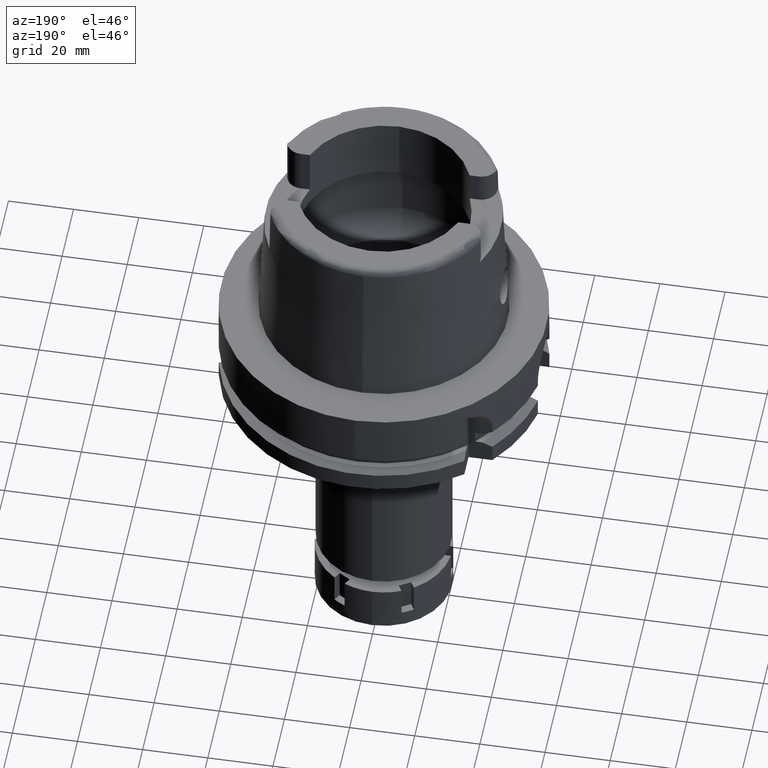
[diagram: clean part render]
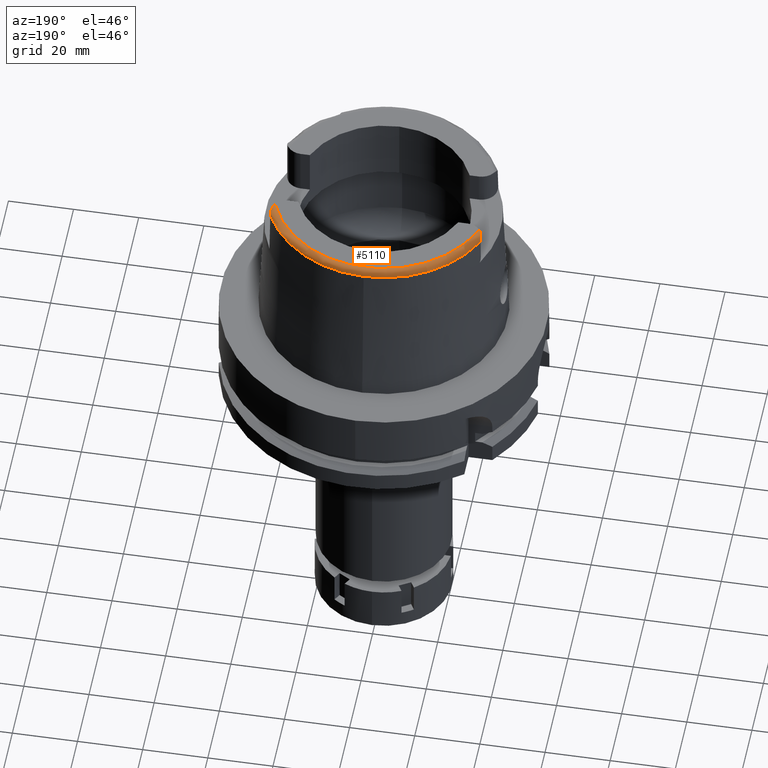
[diagram: same view with one face highlighted and labeled with its STEP entity id]
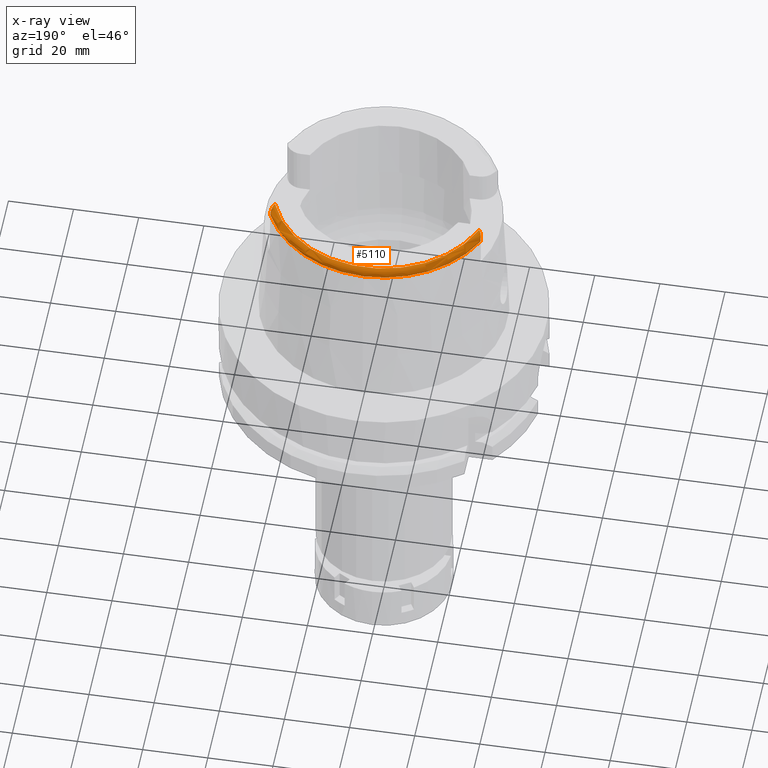
[diagram: x-ray of the same camera — body ghosted, the highlighted face saturated]
A machine part, auxiliary view. The second image highlights one B-rep face of the part: STEP entity #5110.
The next image is the same camera in x-ray: the body ghosted, the highlighted face saturated — about 0% of this face is hidden behind the body in this view.
In plain terms, the highlighted toroidal blend (fillet) surface has major radius 33.5974 mm and minor (blend) radius 2 mm.
Its self-contained STEP definition (entity closure, byte-faithful):
#4 = AXIS2_PLACEMENT_3D ( 'NONE', #3553, #669, #271 ) ;
#92 = VERTEX_POINT ( 'NONE', #5031 ) ;
#182 = CARTESIAN_POINT ( 'NONE',  ( -31.96487981873288220, 13.24625706049956086, 49.73013168355097235 ) ) ;
#271 = DIRECTION ( 'NONE',  ( 0.0000000000000000000, 1.000000000000000000, 0.0000000000000000000 ) ) ;
#356 = CARTESIAN_POINT ( 'NONE',  ( -32.25000136840999687, 15.06443227085999936, 48.09991931670000298 ) ) ;
#361 = CARTESIAN_POINT ( 'NONE',  ( 31.68058995936147326, 12.58011105313796030, 49.95522444505520099 ) ) ;
#399 = CARTESIAN_POINT ( 'NONE',  ( -32.24999999999998579, 14.78364378663151513, 48.70310261414942943 ) ) ;
#480 = CARTESIAN_POINT ( 'NONE',  ( 31.52466408963410061, 12.31305631139167645, 49.99999999999998579 ) ) ;
#486 = B_SPLINE_CURVE_WITH_KNOTS ( 'NONE', 3,
 ( #5754, #5320, #3880, #3942 ),
 .UNSPECIFIED., .F., .F.,
 ( 4, 4 ),
 ( 0.0000000000000000000, 1.000000000000000000 ),
 .UNSPECIFIED. ) ;
#488 = CARTESIAN_POINT ( 'NONE',  ( -32.22728169174256152, 14.41905298734286589, 49.04008686205408907 ) ) ;
#581 = ORIENTED_EDGE ( 'NONE', *, *, #5556, .F. ) ;
#612 = ORIENTED_EDGE ( 'NONE', *, *, #4868, .F. ) ;
#637 = EDGE_CURVE ( 'NONE', #2660, #3867, #5043, .T. ) ;
#644 = CARTESIAN_POINT ( 'NONE',  ( -32.04953483720160534, 13.50222167409295437, 49.61657190204108048 ) ) ;
#654 = CARTESIAN_POINT ( 'NONE',  ( -31.35385269249000473, 12.07161079256999869, 50.00000000000000000 ) ) ;
#669 = DIRECTION ( 'NONE',  ( 0.0000000000000000000, 0.0000000000000000000, -1.000000000000000000 ) ) ;
#711 = EDGE_CURVE ( 'NONE', #1247, #92, #5731, .T. ) ;
#834 = CARTESIAN_POINT ( 'NONE',  ( -32.09749989972133477, 13.67943184076631802, 49.52553926000845053 ) ) ;
#877 = CARTESIAN_POINT ( 'NONE',  ( -32.25000000000000000, 14.89000000000000057, 48.54599893821999501 ) ) ;
#885 = CARTESIAN_POINT ( 'NONE',  ( 31.35385269249000473, 12.07161079256999869, 50.00000000000000000 ) ) ;
#916 = CARTESIAN_POINT ( 'NONE',  ( 32.23172181409410797, 14.46725293886401964, 49.00002851192189723 ) ) ;
#929 = ORIENTED_EDGE ( 'NONE', *, *, #5865, .F. ) ;
#1144 = CARTESIAN_POINT ( 'NONE',  ( -31.84648628554329619, 12.94527730931243958, 49.84294029563975670 ) ) ;
#1229 = CARTESIAN_POINT ( 'NONE',  ( 0.0000000000000000000, 0.0000000000000000000, 48.09987853799000135 ) ) ;
#1247 = VERTEX_POINT ( 'NONE', #654 ) ;
#1263 = DIRECTION ( 'NONE',  ( 0.0000000000000000000, 0.0000000000000000000, -1.000000000000000000 ) ) ;
#1297 = DIRECTION ( 'NONE',  ( 0.0000000000000000000, 0.0000000000000000000, -1.000000000000000000 ) ) ;
#1320 = CARTESIAN_POINT ( 'NONE',  ( 32.07001888030746528, 13.57322360245416526, 49.58162912149747115 ) ) ;
#1331 = AXIS2_PLACEMENT_3D ( 'NONE', #2180, #1263, #2667 ) ;
#1364 = VERTEX_POINT ( 'NONE', #5102 ) ;
#1369 = CARTESIAN_POINT ( 'NONE',  ( -32.25000136840999687, 15.06443227085999936, 48.09991931670000298 ) ) ;
#1410 = CARTESIAN_POINT ( 'NONE',  ( 32.01512724782064367, 13.39415556664475560, 49.66594623512060735 ) ) ;
#1437 = ORIENTED_EDGE ( 'NONE', *, *, #2992, .F. ) ;
#1521 = EDGE_LOOP ( 'NONE', ( #4521, #929, #5998, #1437, #5764, #612, #581 ) ) ;
#1581 = DIRECTION ( 'NONE',  ( 0.0000000000000000000, 0.0000000000000000000, 1.000000000000000000 ) ) ;
#1596 = CARTESIAN_POINT ( 'NONE',  ( -31.35385269249000473, 12.07161079256999869, 50.00000000000000000 ) ) ;
#1659 = B_SPLINE_CURVE_WITH_KNOTS ( 'NONE', 3,
 ( #1596, #5337, #3473, #1144, #4389, #3929, #182, #2059, #3025, #5799, #644, #4148, #834, #2365, #3289, #4664, #1780, #2241, #3710, #4692, #4600, #2732, #488, #4180, #399, #2763 ),
 .UNSPECIFIED., .F., .F.,
 ( 4, 2, 1, 1, 2, 2, 1, 1, 2, 2, 2, 2, 2, 2, 4 ),
 ( 0.0000000000000000000, 0.2500000000000074385, 0.3125000000000109912, 0.3437500000000113243, 0.3593750000000109912, 0.3750000000000106026, 0.4375000000000140443, 0.4687500000000162648, 0.4843750000000174305, 0.5000000000000185407, 0.6250000000000156541, 0.6875000000000119904, 0.7187500000000121014, 0.7500000000000121014, 1.000000000000000000 ),
 .UNSPECIFIED. ) ;
#1750 = CARTESIAN_POINT ( 'NONE',  ( 32.17886541826015190, 14.05775298549782804, 49.30349794243375783 ) ) ;
#1753 = DIRECTION ( 'NONE',  ( -0.9060276961631030801, 0.4232183996300014628, 0.0000000000000000000 ) ) ;
#1780 = CARTESIAN_POINT ( 'NONE',  ( -32.16966989089883100, 14.00044878918074431, 49.34207297616477206 ) ) ;
#2059 = CARTESIAN_POINT ( 'NONE',  ( -31.97838477451039907, 13.28450905645127378, 49.71409384055503011 ) ) ;
#2076 = CARTESIAN_POINT ( 'NONE',  ( 0.0000000000000000000, 0.0000000000000000000, 48.00000000000000000 ) ) ;
#2090 = CARTESIAN_POINT ( 'NONE',  ( 32.24274009002115804, 14.62049195451897177, 48.86211355460235950 ) ) ;
#2180 = CARTESIAN_POINT ( 'NONE',  ( 0.0000000000000000000, 0.0000000000000000000, 50.00000000000000000 ) ) ;
#2241 = CARTESIAN_POINT ( 'NONE',  ( -32.19754399612461526, 14.17400274438451291, 49.22529891586536621 ) ) ;
#2268 = CARTESIAN_POINT ( 'NONE',  ( 31.87911312191448587, 13.01706325789564289, 49.82089778022083948 ) ) ;
#2365 = CARTESIAN_POINT ( 'NONE',  ( -32.10638904174510344, 13.71469177861608379, 49.50659899135672504 ) ) ;
#2660 = VERTEX_POINT ( 'NONE', #1369 ) ;
#2667 = DIRECTION ( 'NONE',  ( -0.9332215253017949186, 0.3593015233941980191, 0.0000000000000000000 ) ) ;
#2697 = CARTESIAN_POINT ( 'NONE',  ( 32.12978960444014120, 13.81340055910849784, 49.45166562391104748 ) ) ;
#2732 = CARTESIAN_POINT ( 'NONE',  ( -32.22454544359327144, 14.39150964368591268, 49.06240339396138950 ) ) ;
#2758 = CARTESIAN_POINT ( 'NONE',  ( 32.21997691344737547, 14.33991896557711421, 49.10580971341506995 ) ) ;
#2763 = CARTESIAN_POINT ( 'NONE',  ( -32.25000000000000000, 14.89000000000000057, 48.54599893821999501 ) ) ;
#2823 = CARTESIAN_POINT ( 'NONE',  ( 32.23355760755246280, 14.48909550906647326, 48.98135550497193691 ) ) ;
#2883 = B_SPLINE_CURVE_WITH_KNOTS ( 'NONE', 3,
 ( #877, #3608, #5474, #356 ),
 .UNSPECIFIED., .F., .F.,
 ( 4, 4 ),
 ( 0.0000000000000000000, 1.000000000000000000 ),
 .UNSPECIFIED. ) ;
#2992 = EDGE_CURVE ( 'NONE', #3867, #5598, #3630, .T. ) ;
#3021 = CARTESIAN_POINT ( 'NONE',  ( 32.24916268106667161, 14.77266403081240220, 48.70365683542478052 ) ) ;
#3025 = CARTESIAN_POINT ( 'NONE',  ( -31.98544796248609856, 13.30494468851976642, 49.70535850351675577 ) ) ;
#3163 = CARTESIAN_POINT ( 'NONE',  ( 32.12252293229525435, 13.78176301601502018, 49.46957010468602078 ) ) ;
#3193 = CARTESIAN_POINT ( 'NONE',  ( 31.99781428868275768, 13.34140465845667123, 49.68950264019745333 ) ) ;
#3281 = CARTESIAN_POINT ( 'NONE',  ( 32.16825257439947450, 13.99835146753452619, 49.34147474366616137 ) ) ;
#3289 = CARTESIAN_POINT ( 'NONE',  ( -32.11108991264970314, 13.73382599377631585, 49.49616252245012049 ) ) ;
#3296 = AXIS2_PLACEMENT_3D ( 'NONE', #2076, #1581, #4825 ) ;
#3318 = CARTESIAN_POINT ( 'NONE',  ( 32.24997259576885256, 15.06456611169540061, 48.09965122039500329 ) ) ;
#3469 = CARTESIAN_POINT ( 'NONE',  ( 32.25000000000000000, 14.83671749271993789, 48.62470499113426570 ) ) ;
#3473 = CARTESIAN_POINT ( 'NONE',  ( -31.68010032358703398, 12.57892922351350506, 49.95564447366452754 ) ) ;
#3553 = CARTESIAN_POINT ( 'NONE',  ( 0.0000000000000000000, 0.0000000000000000000, 48.09987853799000135 ) ) ;
#3576 = AXIS2_PLACEMENT_3D ( 'NONE', #1229, #1297, #1753 ) ;
#3608 = CARTESIAN_POINT ( 'NONE',  ( -32.25000000000000000, 14.98831011541637892, 48.40078052526157393 ) ) ;
#3630 = CIRCLE ( 'NONE', #4, 35.59494289391000166 ) ;
#3674 = CARTESIAN_POINT ( 'NONE',  ( 31.93907908462883327, 13.16827872432561897, 49.76473070425510770 ) ) ;
#3710 = CARTESIAN_POINT ( 'NONE',  ( -32.20550228814332883, 14.23020244841448800, 49.18550189275488549 ) ) ;
#3813 = FACE_OUTER_BOUND ( 'NONE', #1521, .T. ) ;
#3852 = B_SPLINE_CURVE_WITH_KNOTS ( 'NONE', 3,
 ( #5948, #3469, #3021, #4874, #2090, #5480, #5511, #2823, #916, #2758, #5053, #1750, #3281, #4199, #5572, #2697, #3163, #4626, #5603, #1320, #4685, #1410, #5080, #3193, #3674, #2268, #361, #480, #885 ),
 .UNSPECIFIED., .F., .F.,
 ( 4, 2, 2, 2, 2, 2, 2, 1, 2, 2, 1, 1, 2, 2, 2, 4 ),
 ( 0.0000000000000000000, 0.1249999999999998335, 0.1874999999999998612, 0.2187500000000005274, 0.2500000000000012212, 0.3749999999999970024, 0.4374999999999949485, 0.4687499999999943934, 0.4843749999999934497, 0.4999999999999925615, 0.5624999999999900080, 0.5937499999999887867, 0.6093749999999900080, 0.6249999999999912292, 0.7499999999999941158, 1.000000000000000000 ),
 .UNSPECIFIED. ) ;
#3867 = VERTEX_POINT ( 'NONE', #4456 ) ;
#3880 = CARTESIAN_POINT ( 'NONE',  ( 32.25000000000000000, 14.98827100863986495, 48.40083829170472285 ) ) ;
#3918 = CARTESIAN_POINT ( 'NONE',  ( 32.25000000000000000, 14.89000000000000057, 48.54599893821999501 ) ) ;
#3929 = CARTESIAN_POINT ( 'NONE',  ( -31.94427642678977719, 13.18903867581786216, 49.75367765248844165 ) ) ;
#3942 = CARTESIAN_POINT ( 'NONE',  ( 32.25000000000000000, 14.89000000000000057, 48.54599893821999501 ) ) ;
#4148 = CARTESIAN_POINT ( 'NONE',  ( -32.08382879390160269, 13.62645059338330356, 49.55359462738348952 ) ) ;
#4180 = CARTESIAN_POINT ( 'NONE',  ( -32.24707753819077283, 14.63424215898204572, 48.86117211671106020 ) ) ;
#4199 = CARTESIAN_POINT ( 'NONE',  ( 32.15004890076698985, 13.90689333001398431, 49.39713924170523285 ) ) ;
#4389 = CARTESIAN_POINT ( 'NONE',  ( -31.89380002612663390, 13.05667434348239730, 49.80504267778077576 ) ) ;
#4456 = CARTESIAN_POINT ( 'NONE',  ( 0.0000000000000000000, 35.59494289391000166, 48.09987853799000135 ) ) ;
#4521 = ORIENTED_EDGE ( 'NONE', *, *, #711, .T. ) ;
#4600 = CARTESIAN_POINT ( 'NONE',  ( -32.21883749649838791, 14.33874776027539610, 49.10394508975986838 ) ) ;
#4626 = CARTESIAN_POINT ( 'NONE',  ( 32.11916339919435615, 13.76742533009516478, 49.47759793184901156 ) ) ;
#4664 = CARTESIAN_POINT ( 'NONE',  ( -32.14576199577540905, 13.87812131188936071, 49.41643300432164665 ) ) ;
#4685 = CARTESIAN_POINT ( 'NONE',  ( 32.03235964392430901, 13.44802923628652103, 49.64139227827431000 ) ) ;
#4692 = CARTESIAN_POINT ( 'NONE',  ( -32.21571890478703892, 14.31193244969227329, 49.12449785357312493 ) ) ;
#4716 = VERTEX_POINT ( 'NONE', #3918 ) ;
#4825 = DIRECTION ( 'NONE',  ( -0.0004184165975219878483, -0.9999999124637716230, 0.0000000000000000000 ) ) ;
#4868 = EDGE_CURVE ( 'NONE', #1364, #2660, #2883, .T. ) ;
#4874 = CARTESIAN_POINT ( 'NONE',  ( 32.24474582663815170, 14.66053938209650376, 48.82245328892490477 ) ) ;
#5031 = CARTESIAN_POINT ( 'NONE',  ( 31.35385269249000473, 12.07161079256999869, 50.00000000000000000 ) ) ;
#5043 = CIRCLE ( 'NONE', #3576, 35.59494289391000166 ) ;
#5053 = CARTESIAN_POINT ( 'NONE',  ( 32.20671637984565905, 14.23101481255100609, 49.18696613111770688 ) ) ;
#5080 = CARTESIAN_POINT ( 'NONE',  ( 32.00339298714086311, 13.35819480874375031, 49.68208024532270883 ) ) ;
#5102 = CARTESIAN_POINT ( 'NONE',  ( -32.25000000000000000, 14.89000000000000057, 48.54599893821999501 ) ) ;
#5110 = ADVANCED_FACE ( 'NONE', ( #3813 ), #5454, .T. ) ;
#5249 = EDGE_CURVE ( 'NONE', #5598, #4716, #486, .T. ) ;
#5320 = CARTESIAN_POINT ( 'NONE',  ( 32.25000000000000000, 15.04644984795161555, 48.25213016594639015 ) ) ;
#5337 = CARTESIAN_POINT ( 'NONE',  ( -31.52479798587303605, 12.31324557655442220, 50.00000000000002842 ) ) ;
#5454 = TOROIDAL_SURFACE ( 'NONE', #3296, 33.59743838135999994, 2.000000000000000000 ) ;
#5474 = CARTESIAN_POINT ( 'NONE',  ( -32.25000000000000000, 15.04645420570304637, 48.25208731808824325 ) ) ;
#5480 = CARTESIAN_POINT ( 'NONE',  ( 32.23863421774436233, 14.55644566158056641, 48.92169612488463315 ) ) ;
#5511 = CARTESIAN_POINT ( 'NONE',  ( 32.23708231048654227, 14.53443454079291008, 48.94157234360637432 ) ) ;
#5556 = EDGE_CURVE ( 'NONE', #1247, #1364, #1659, .T. ) ;
#5572 = CARTESIAN_POINT ( 'NONE',  ( 32.14037576990442346, 13.86057568606285528, 49.42464631477240999 ) ) ;
#5598 = VERTEX_POINT ( 'NONE', #3318 ) ;
#5603 = CARTESIAN_POINT ( 'NONE',  ( 32.09804266065519585, 13.67952789905268141, 49.52616826002797978 ) ) ;
#5731 = CIRCLE ( 'NONE', #1331, 33.59743838135999994 ) ;
#5754 = CARTESIAN_POINT ( 'NONE',  ( 32.24997259576885256, 15.06456611169540061, 48.09965122039500329 ) ) ;
#5764 = ORIENTED_EDGE ( 'NONE', *, *, #637, .F. ) ;
#5799 = CARTESIAN_POINT ( 'NONE',  ( -32.01592230975136744, 13.39481785402097103, 49.66629199594604671 ) ) ;
#5865 = EDGE_CURVE ( 'NONE', #4716, #92, #3852, .T. ) ;
#5948 = CARTESIAN_POINT ( 'NONE',  ( 32.25000000000000000, 14.89000000000000057, 48.54599893821999501 ) ) ;
#5998 = ORIENTED_EDGE ( 'NONE', *, *, #5249, .F. ) ;